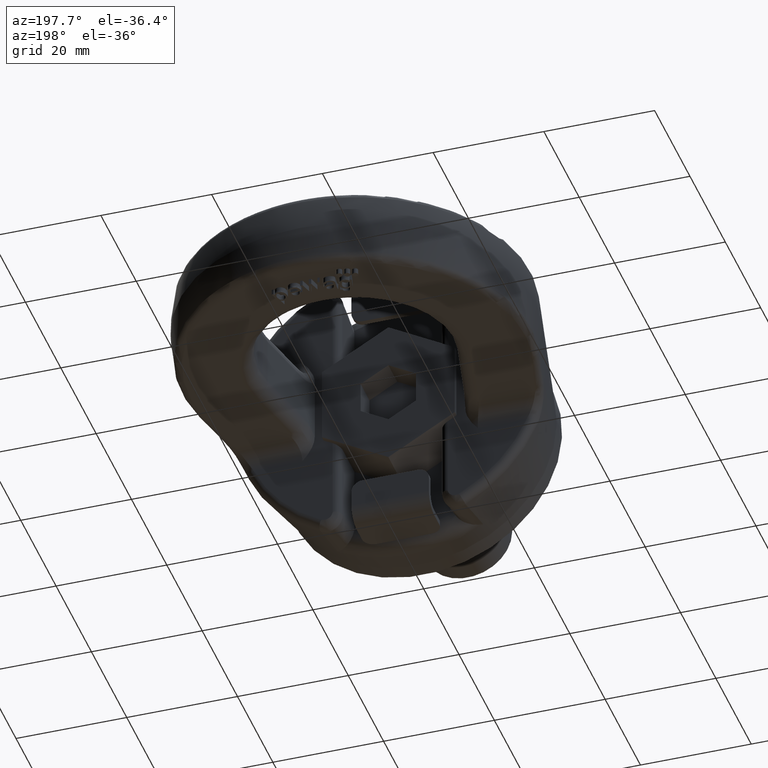
[diagram: clean part render]
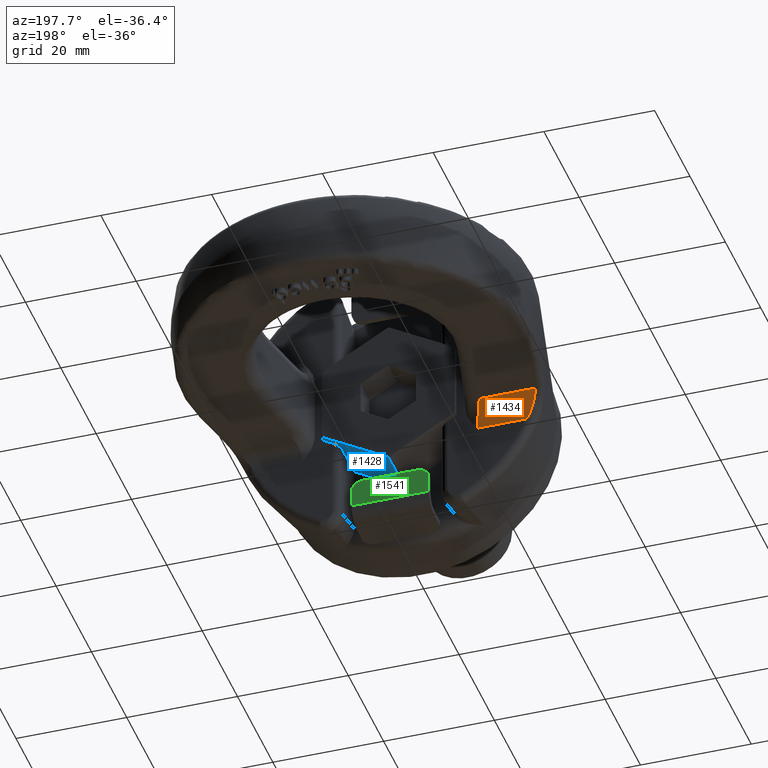
[diagram: same view with three faces highlighted in distinct colors, each labeled with its STEP entity id]
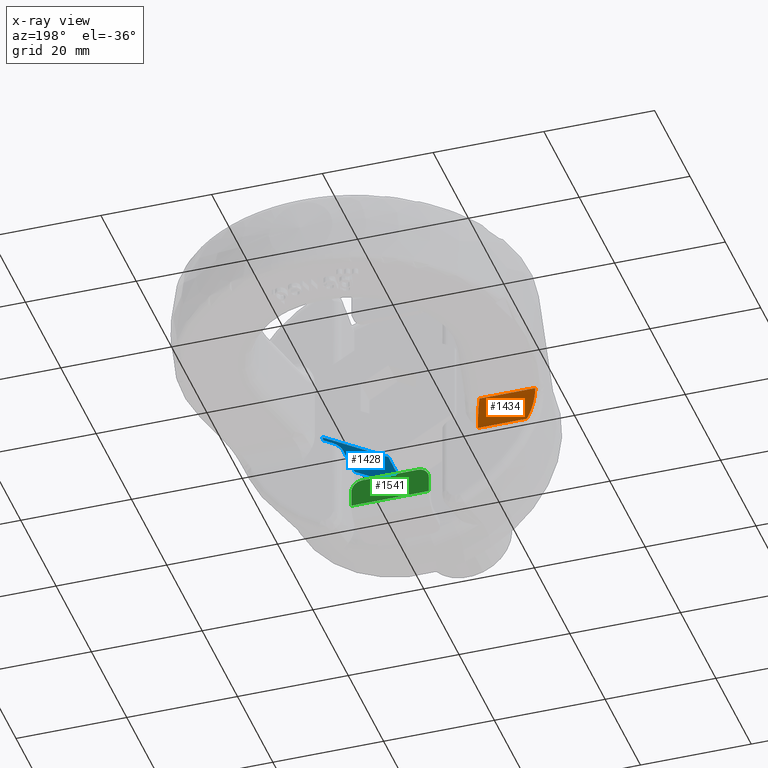
[diagram: x-ray of the same camera — body ghosted, the three highlighted faces saturated]
A machine part, auxiliary view with three faces highlighted in distinct colors.
The next image is the same camera in x-ray (body ghosted, the three faces saturated) — at least one of them is partly hidden behind the body in this view.
Their STEP definitions:

[orange] entity #1434 — the highlighted cylindrical surface (edge-blend (fillet) strip) has radius 3.5 mm, axis along (1, 0, 0).
#1054=ELLIPSE('',#5261,3.76985097697133,3.5);
#1068=CYLINDRICAL_SURFACE('',#5262,3.5);
#1202=FACE_OUTER_BOUND('',#1965,.T.);
#1434=ADVANCED_FACE('',(#1202),#1068,.F.);
#1965=EDGE_LOOP('',(#3377,#3378,#3379,#3380));
#2130=LINE('',#6610,#2410);
#2243=LINE('',#8224,#2551);
#2410=VECTOR('',#5444,1.);
#2551=VECTOR('',#5831,1.);
#3377=ORIENTED_EDGE('',*,*,#4602,.F.);
#3378=ORIENTED_EDGE('',*,*,#4644,.T.);
#3379=ORIENTED_EDGE('',*,*,#4339,.F.);
#3380=ORIENTED_EDGE('',*,*,#4645,.T.);
#3951=VERTEX_POINT('',#6609);
#3952=VERTEX_POINT('',#6611);
#4119=VERTEX_POINT('',#8223);
#4120=VERTEX_POINT('',#8225);
#4339=EDGE_CURVE('',#3951,#3952,#2130,.T.);
#4602=EDGE_CURVE('',#4119,#4120,#2243,.T.);
#4644=EDGE_CURVE('',#4119,#3952,#1054,.T.);
#4645=EDGE_CURVE('',#3951,#4120,#5024,.T.);
#5024=B_SPLINE_CURVE_WITH_KNOTS('',3,(#8486,#8487,#8488,#8489,#8490,#8491,
#8492,#8493,#8494,#8495,#8496,#8497,#8498,#8499,#8500,#8501),
 .UNSPECIFIED.,.F.,.F.,(4,3,3,3,3,4),(0.,0.241150316995508,0.480525925949196,
0.711251947051128,0.931475636909614,1.),.UNSPECIFIED.);
#5261=AXIS2_PLACEMENT_3D('',#8485,#5877,#5878);
#5262=AXIS2_PLACEMENT_3D('',#8502,#5879,#5880);
#5444=DIRECTION('',(1.,0.,2.34291072916505E-15));
#5831=DIRECTION('',(-1.,0.,-2.34291072916505E-15));
#5877=DIRECTION('',(0.92841866200554,0.371535715698833,2.17520204436984E-15));
#5878=DIRECTION('',(0.371535715698833,-0.92841866200554,8.7047501457881E-16));
#5879=DIRECTION('',(1.,0.,2.34291072916505E-15));
#5880=DIRECTION('',(2.47817639425258E-15,0.,-1.));
#6609=CARTESIAN_POINT('',(-24.6702046091602,19.,-10.5000000000001));
#6610=CARTESIAN_POINT('',(-8.99999999999998,19.,-10.5));
#6611=CARTESIAN_POINT('',(-15.8378374688963,19.,-10.5));
#8223=CARTESIAN_POINT('',(-17.2384717497033,22.5,-7.00000000000005));
#8224=CARTESIAN_POINT('',(-64.,22.5,-7.00000000000016));
#8225=CARTESIAN_POINT('',(-27.3333532184673,22.5,-7.00000000000007));
#8485=CARTESIAN_POINT('',(-17.2384717497033,22.5,-10.5000000000001));
#8486=CARTESIAN_POINT('',(-24.6702046091602,19.,-10.5000000000001));
#8487=CARTESIAN_POINT('',(-24.9209847642715,19.,-10.0791294055434));
#8488=CARTESIAN_POINT('',(-25.1748697778675,19.0774135766787,-9.65300991285296));
#8489=CARTESIAN_POINT('',(-25.4168051218079,19.2289703379712,-9.25486348132931));
#8490=CARTESIAN_POINT('',(-25.656793420252,19.3793074018656,-8.85992124975303));
#8491=CARTESIAN_POINT('',(-25.8913080167809,19.6070223552373,-8.48281870455178));
#8492=CARTESIAN_POINT('',(-26.1100200435421,19.8971601063662,-8.16008023895946));
#8493=CARTESIAN_POINT('',(-26.3208089668502,20.176787272175,-7.84903335836593));
#8494=CARTESIAN_POINT('',(-26.5228797644429,20.5218996921194,-7.58073025569706));
#8495=CARTESIAN_POINT('',(-26.708235681355,20.9047595229826,-7.38468174651693));
#8496=CARTESIAN_POINT('',(-26.8851824365046,21.2702499042825,-7.1975274968481));
#8497=CARTESIAN_POINT('',(-27.0521098386084,21.6800294584078,-7.07131689894524));
#8498=CARTESIAN_POINT('',(-27.1994210384946,22.0994158287804,-7.02299952232275));
#8499=CARTESIAN_POINT('',(-27.2458761301275,22.2316707576674,-7.00776247204966));
#8500=CARTESIAN_POINT('',(-27.2906575344778,22.36561738199,-7.00000000000007));
#8501=CARTESIAN_POINT('',(-27.3333532184673,22.5,-7.00000000000007));
#8502=CARTESIAN_POINT('',(-8.99999999999998,22.5,-10.5));

[blue] entity #1428 — the highlighted planar face has unit normal (-0.5, 0, 0.866).
#1053=ELLIPSE('',#5256,1.61658075373095,1.4);
#1196=FACE_OUTER_BOUND('',#1959,.T.);
#1428=ADVANCED_FACE('',(#1196),#1610,.F.);
#1610=PLANE('',#5257);
#1959=EDGE_LOOP('',(#3348,#3349,#3350,#3351,#3352,#3353,#3354));
#2114=LINE('',#6532,#2394);
#2147=LINE('',#6743,#2427);
#2155=LINE('',#6890,#2435);
#2253=LINE('',#8350,#2561);
#2258=LINE('',#8381,#2566);
#2261=LINE('',#8396,#2569);
#2394=VECTOR('',#5424,1.);
#2427=VECTOR('',#5477,1.);
#2435=VECTOR('',#5539,1.);
#2561=VECTOR('',#5845,1.);
#2566=VECTOR('',#5854,1.);
#2569=VECTOR('',#5863,1.);
#3348=ORIENTED_EDGE('',*,*,#4370,.F.);
#3349=ORIENTED_EDGE('',*,*,#4638,.T.);
#3350=ORIENTED_EDGE('',*,*,#4623,.F.);
#3351=ORIENTED_EDGE('',*,*,#4632,.F.);
#3352=ORIENTED_EDGE('',*,*,#4637,.T.);
#3353=ORIENTED_EDGE('',*,*,#4320,.T.);
#3354=ORIENTED_EDGE('',*,*,#4409,.F.);
#3931=VERTEX_POINT('',#6530);
#3933=VERTEX_POINT('',#6533);
#3980=VERTEX_POINT('',#6742);
#3981=VERTEX_POINT('',#6744);
#4140=VERTEX_POINT('',#8351);
#4141=VERTEX_POINT('',#8352);
#4148=VERTEX_POINT('',#8380);
#4320=EDGE_CURVE('',#3933,#3931,#2114,.T.);
#4370=EDGE_CURVE('',#3980,#3981,#2147,.T.);
#4409=EDGE_CURVE('',#3981,#3931,#2155,.T.);
#4623=EDGE_CURVE('',#4140,#4141,#2253,.T.);
#4632=EDGE_CURVE('',#4148,#4140,#2258,.T.);
#4637=EDGE_CURVE('',#4148,#3933,#2261,.T.);
#4638=EDGE_CURVE('',#3980,#4141,#1053,.T.);
#5256=AXIS2_PLACEMENT_3D('',#8398,#5866,#5867);
#5257=AXIS2_PLACEMENT_3D('',#8399,#5868,#5869);
#5424=DIRECTION('',(0.86602540378444,0.,0.499999999999997));
#5477=DIRECTION('',(0.86602540378444,0.,0.499999999999997));
#5539=DIRECTION('',(0.,1.,0.));
#5845=DIRECTION('',(0.,1.,0.));
#5854=DIRECTION('',(0.86602540378444,-8.34619221520647E-17,0.499999999999997));
#5863=DIRECTION('',(0.,1.,0.));
#5866=DIRECTION('',(-0.499999999999997,0.,0.86602540378444));
#5867=DIRECTION('',(-0.86602540378444,0.,-0.499999999999997));
#5868=DIRECTION('',(-0.499999999999997,0.,0.86602540378444));
#5869=DIRECTION('',(0.86602540378444,0.,0.499999999999997));
#6530=CARTESIAN_POINT('',(12.,20.,-6.9282032302755));
#6532=CARTESIAN_POINT('',(3.24643233640967E-14,20.,-13.8564064605509));
#6533=CARTESIAN_POINT('',(3.24643233640967E-14,20.,-13.8564064605509));
#6742=CARTESIAN_POINT('',(10.4,19.,-7.85196366097889));
#6743=CARTESIAN_POINT('',(0.951936173791067,19.,-13.3068058543614));
#6744=CARTESIAN_POINT('',(12.,19.,-6.9282032302755));
#6890=CARTESIAN_POINT('',(12.,1.3,-6.9282032302755));
#8350=CARTESIAN_POINT('',(9.00000000000002,19.,-8.66025403784437));
#8351=CARTESIAN_POINT('',(9.00000000000002,11.,-8.66025403784436));
#8352=CARTESIAN_POINT('',(9.00000000000002,17.6,-8.66025403784437));
#8380=CARTESIAN_POINT('',(3.24643233640967E-14,11.,-13.8564064605509));
#8381=CARTESIAN_POINT('',(-2.49204710660598,11.,-15.2951905283831));
#8396=CARTESIAN_POINT('',(3.24643233640967E-14,1.3,-13.8564064605509));
#8398=CARTESIAN_POINT('',(10.4,17.6,-7.85196366097889));
#8399=CARTESIAN_POINT('',(3.24643233640967E-14,1.3,-13.8564064605509));

[green] entity #1541 — the highlighted planar face has unit normal (0, -1, 0).
#1302=FACE_OUTER_BOUND('',#2079,.T.);
#1541=ADVANCED_FACE('',(#1302),#1664,.F.);
#1664=PLANE('',#5373);
#1752=CIRCLE('',#5371,2.);
#1753=CIRCLE('',#5372,2.);
#2079=EDGE_LOOP('',(#3846,#3847,#3848,#3849,#3850,#3851));
#2347=LINE('',#9635,#2683);
#2355=LINE('',#9657,#2691);
#2360=LINE('',#9670,#2696);
#2364=LINE('',#9684,#2700);
#2683=VECTOR('',#6181,1.);
#2691=VECTOR('',#6197,1.);
#2696=VECTOR('',#6206,1.);
#2700=VECTOR('',#6228,1.);
#3846=ORIENTED_EDGE('',*,*,#4840,.T.);
#3847=ORIENTED_EDGE('',*,*,#4848,.T.);
#3848=ORIENTED_EDGE('',*,*,#4834,.T.);
#3849=ORIENTED_EDGE('',*,*,#4849,.F.);
#3850=ORIENTED_EDGE('',*,*,#4824,.F.);
#3851=ORIENTED_EDGE('',*,*,#4850,.T.);
#4248=VERTEX_POINT('',#9634);
#4249=VERTEX_POINT('',#9636);
#4258=VERTEX_POINT('',#9656);
#4259=VERTEX_POINT('',#9658);
#4264=VERTEX_POINT('',#9669);
#4265=VERTEX_POINT('',#9671);
#4824=EDGE_CURVE('',#4248,#4249,#2347,.T.);
#4834=EDGE_CURVE('',#4259,#4258,#2355,.T.);
#4840=EDGE_CURVE('',#4265,#4264,#2360,.T.);
#4848=EDGE_CURVE('',#4264,#4259,#1752,.T.);
#4849=EDGE_CURVE('',#4249,#4258,#2364,.T.);
#4850=EDGE_CURVE('',#4248,#4265,#1753,.T.);
#5371=AXIS2_PLACEMENT_3D('',#9683,#6226,#6227);
#5372=AXIS2_PLACEMENT_3D('',#9685,#6229,#6230);
#5373=AXIS2_PLACEMENT_3D('',#9686,#6231,#6232);
#6181=DIRECTION('',(2.34291072916505E-15,0.,-1.));
#6197=DIRECTION('',(2.34291072916505E-15,0.,-1.));
#6206=DIRECTION('',(1.,0.,2.34291072916505E-15));
#6226=DIRECTION('',(0.,1.,0.));
#6227=DIRECTION('',(-2.16840434497101E-15,0.,0.999999999999999));
#6228=DIRECTION('',(1.,0.,2.34291072916505E-15));
#6229=DIRECTION('',(0.,1.,0.));
#6230=DIRECTION('',(-2.16840434497101E-15,0.,0.999999999999999));
#6231=DIRECTION('',(0.,-1.,0.));
#6232=DIRECTION('',(-2.34274405430668E-15,0.,1.));
#9634=CARTESIAN_POINT('',(-6.99999999999996,19.,-19.));
#9635=CARTESIAN_POINT('',(-6.99999999999996,19.,-17.));
#9636=CARTESIAN_POINT('',(-6.99999999999995,19.,-22.));
#9656=CARTESIAN_POINT('',(7.00000000000005,19.,-22.));
#9657=CARTESIAN_POINT('',(7.00000000000004,19.,-17.));
#9658=CARTESIAN_POINT('',(7.00000000000004,19.,-19.));
#9669=CARTESIAN_POINT('',(5.00000000000004,19.,-17.));
#9670=CARTESIAN_POINT('',(-6.99999999999996,19.,-17.));
#9671=CARTESIAN_POINT('',(-4.99999999999996,19.,-17.));
#9683=CARTESIAN_POINT('',(5.00000000000004,19.,-19.));
#9684=CARTESIAN_POINT('',(-6.99999999999995,19.,-22.));
#9685=CARTESIAN_POINT('',(-4.99999999999996,19.,-19.));
#9686=CARTESIAN_POINT('',(-6.99999999999996,19.,-17.));